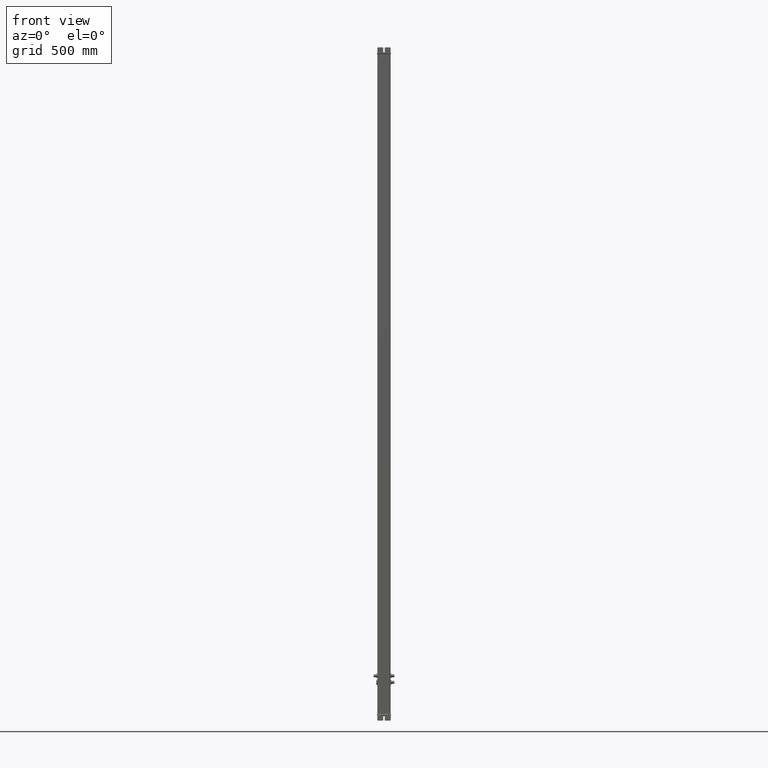
[diagram: clean part render]
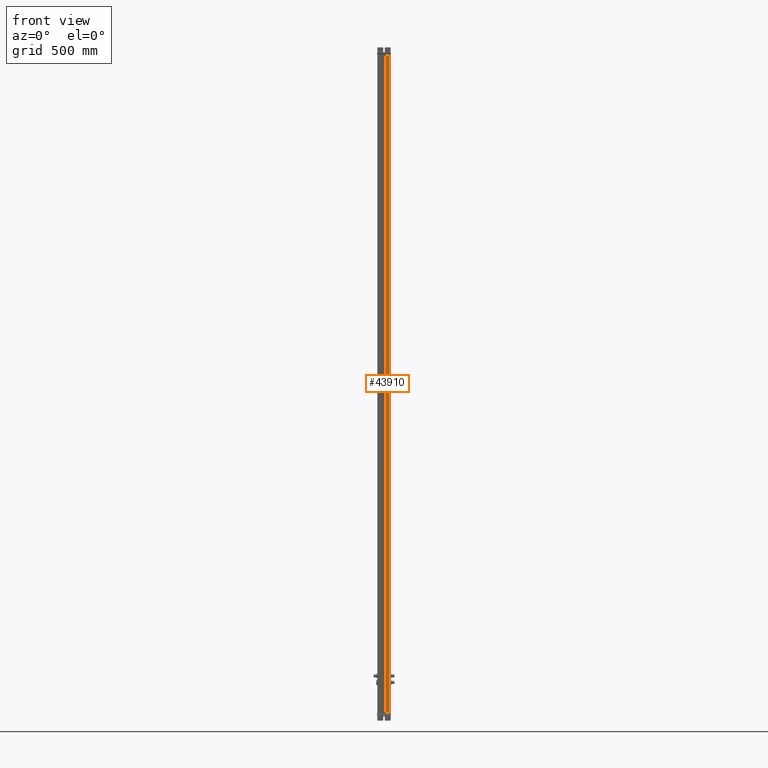
[diagram: same view with one face highlighted and labeled with its STEP entity id]
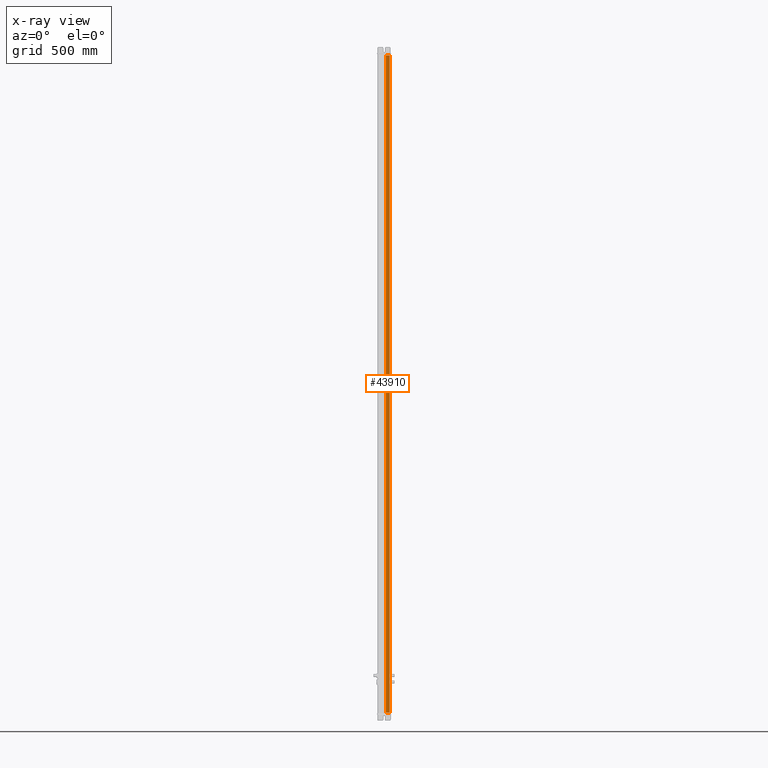
[diagram: x-ray of the same camera — body ghosted, the highlighted face saturated]
A machine part, front view. The second image highlights one B-rep face of the part: STEP entity #43910.
The next image is the same camera in x-ray: the body ghosted, the highlighted face saturated — about 0% of this face is hidden behind the body in this view.
In plain terms, the highlighted planar face has unit normal (0, -1, 0).
Its self-contained STEP definition (entity closure, byte-faithful):
#43730=CARTESIAN_POINT('Axis2P3D Location',(647.67209889,120.060780121,0.)) ;
#43863=CARTESIAN_POINT('Vertex',(647.67209889,120.060780121,2622.)) ;
#43870=CARTESIAN_POINT('Vertex',(647.67209889,120.060780121,0.)) ;
#43873=CARTESIAN_POINT('Line Origine',(647.67209889,120.060780121,1311.)) ;
#43885=CARTESIAN_POINT('Line Origine',(654.908380451,120.060780121,0.)) ;
#43889=CARTESIAN_POINT('Vertex',(662.144662012,120.060780121,0.)) ;
#43892=CARTESIAN_POINT('Line Origine',(662.144662012,120.060780121,1311.)) ;
#43896=CARTESIAN_POINT('Vertex',(662.144662012,120.060780121,2622.)) ;
#43899=CARTESIAN_POINT('Line Origine',(654.908380451,120.060780121,2622.)) ;
#43731=DIRECTION('Axis2P3D Direction',(0.,-1.,0.)) ;
#43732=DIRECTION('Axis2P3D XDirection',(1.,0.,0.)) ;
#43874=DIRECTION('Vector Direction',(0.,0.,1.)) ;
#43886=DIRECTION('Vector Direction',(1.,0.,0.)) ;
#43893=DIRECTION('Vector Direction',(0.,0.,1.)) ;
#43900=DIRECTION('Vector Direction',(1.,0.,0.)) ;
#43733=AXIS2_PLACEMENT_3D('Plane Axis2P3D',#43730,#43731,#43732) ;
#43905=ORIENTED_EDGE('',*,*,#43877,.F.) ;
#43906=ORIENTED_EDGE('',*,*,#43891,.T.) ;
#43907=ORIENTED_EDGE('',*,*,#43898,.T.) ;
#43908=ORIENTED_EDGE('',*,*,#43903,.F.) ;
#43875=VECTOR('Line Direction',#43874,1.) ;
#43887=VECTOR('Line Direction',#43886,1.) ;
#43894=VECTOR('Line Direction',#43893,1.) ;
#43901=VECTOR('Line Direction',#43900,1.) ;
#43910=ADVANCED_FACE('Body.2',(#43909),#43734,.T.) ;
#43877=EDGE_CURVE('',#43871,#43864,#43876,.T.) ;
#43891=EDGE_CURVE('',#43871,#43890,#43888,.T.) ;
#43898=EDGE_CURVE('',#43890,#43897,#43895,.T.) ;
#43903=EDGE_CURVE('',#43864,#43897,#43902,.T.) ;
#43904=EDGE_LOOP('',(#43905,#43906,#43907,#43908)) ;
#43909=FACE_OUTER_BOUND('',#43904,.T.) ;
#43876=LINE('Line',#43873,#43875) ;
#43888=LINE('Line',#43885,#43887) ;
#43895=LINE('Line',#43892,#43894) ;
#43902=LINE('Line',#43899,#43901) ;
#43734=PLANE('Plane',#43733) ;
#43864=VERTEX_POINT('',#43863) ;
#43871=VERTEX_POINT('',#43870) ;
#43890=VERTEX_POINT('',#43889) ;
#43897=VERTEX_POINT('',#43896) ;